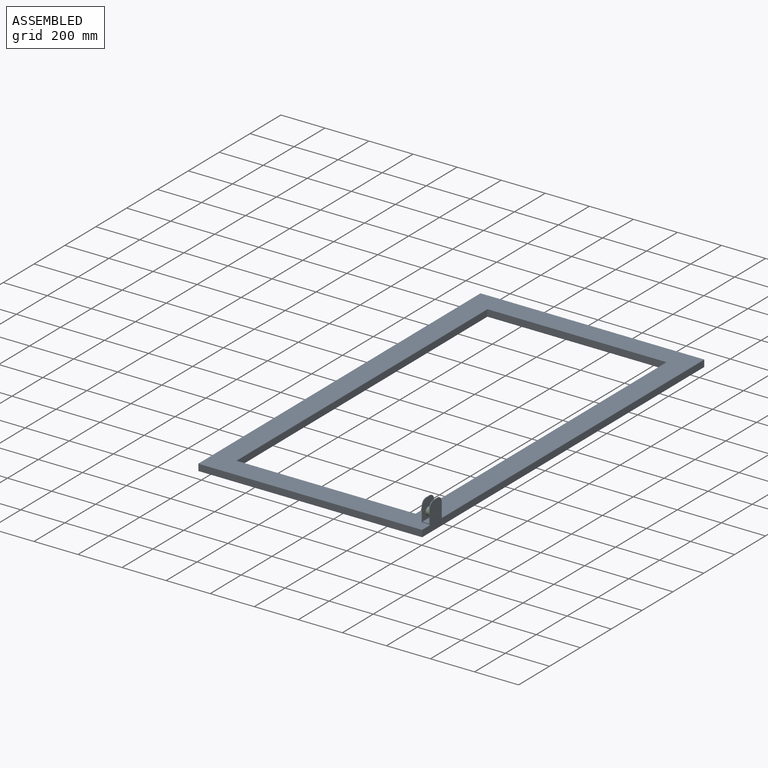
[diagram: assembled view]
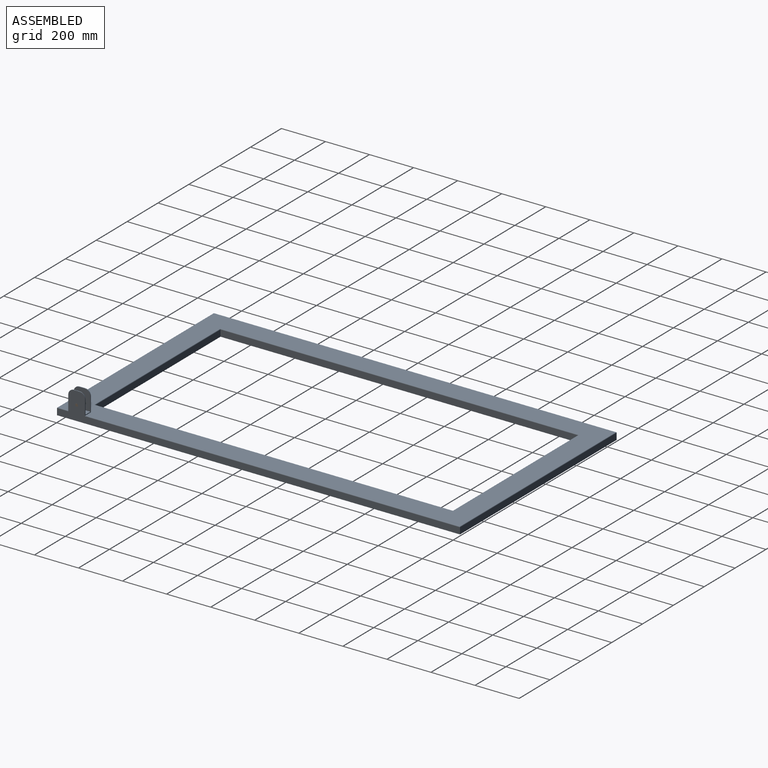
[diagram: assembled view, second angle]
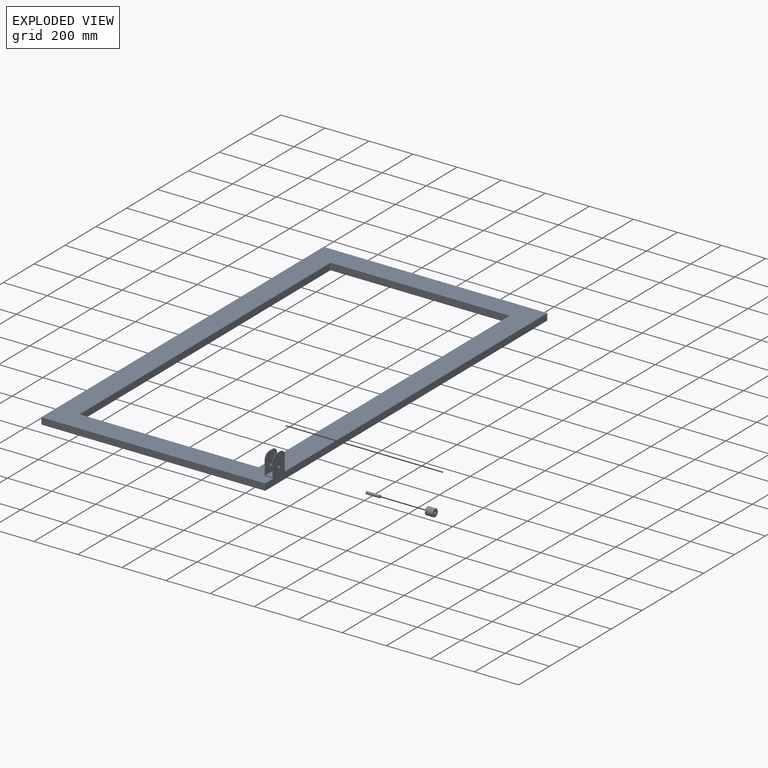
[diagram: exploded view]
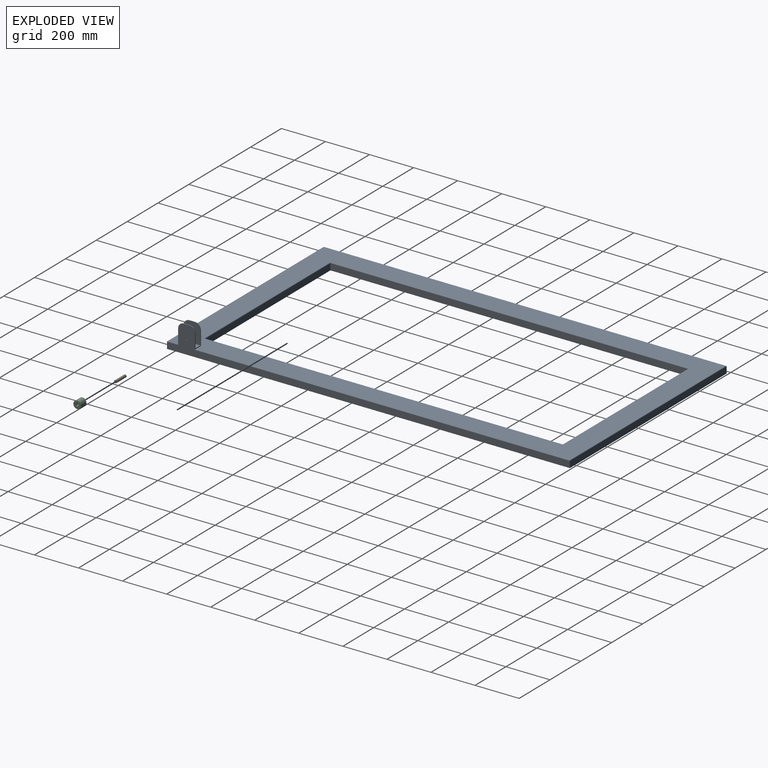
[diagram: exploded view, second angle]
ASSEMBLY  parts=3 mates=2
PART A: 33 faces, bbox 1016x1828.8x123.8 mm
  f0: plane 76.2x31.75mm, normal (0,0,1), area 2419.3mm2, adj f11,f12,f14,f16
  f1: plane 1823.72x1010.92mm, normal (0,0,1), area 509302.2mm2, adj f6,f11,f12,f13,f24,f25,f26,f27
  f2: plane 1016x29.21mm, normal (0,-1,0), area 29677.4mm2, adj f3,f9,f10,f25
  f3: plane 1828.8x123.83mm, normal (1,0,0), area 60225.3mm2, adj f2,f4,f10,f11,f12,f17,f18,f19
  f4: plane 1016x29.21mm, normal (0,1,0), area 29677.4mm2, adj f3,f9,f10,f27
  f5: plane 1628.14x29.21mm, normal (1,0,0), area 47485.2mm2, adj f6,f8,f10,f29,f30
  f6: plane 817.88x29.21mm, normal (0,-1,0), area 23744.7mm2, adj f1,f5,f7,f29,f30,f31
  f7: plane 1628.14x29.21mm, normal (-1,0,0), area 47485.2mm2, adj f6,f8,f10,f29,f31
  f8: plane 812.8x29.21mm, normal (0,1,0), area 23741.9mm2, adj f5,f7,f10,f32
  f9: plane 1828.8x29.21mm, normal (-1,0,0), area 53419.2mm2, adj f2,f4,f10,f26
  f10: plane 1828.8x1016mm, normal (0,0,-1), area 534708.6mm2, adj f2,f3,f4,f5,f7,f8,f9,f29
  f11: plane 69.22x38.1mm, normal (0,-1,0), area 525.6mm2, adj f0,f1,f3,f13,f14,f16,f18,f21
  f12: plane 69.22x38.1mm, normal (0,1,0), area 525.6mm2, adj f0,f1,f3,f13,f14,f16,f19,f20
  f13: plane 92.08x76.2mm, normal (-1,0,0), area 6612.5mm2, adj f1,f11,f12,f15,f20,f21,f23
  f14: plane 88.9x76.2mm, normal (1,0,0), area 6370.6mm2, adj f0,f11,f12,f15,f20,f21,f23
  f15: plane 25.4x3.18mm, normal (0,0,1), area 80.6mm2, adj f13,f14,f20,f21
  f16: plane 88.9x76.2mm, normal (-1,0,0), area 6370.6mm2, adj f0,f11,f12,f17,f18,f19,f22
  f17: plane 25.4x3.18mm, normal (0,0,1), area 80.6mm2, adj f3,f16,f18,f19
  f18: cylinder r=25.4mm len=25.4mm, axis (-1,0,0), area 126.7mm2, adj f3,f11,f16,f17
  f19: cylinder r=25.4mm len=25.4mm, axis (1,0,0), area 126.7mm2, adj f3,f12,f16,f17
  f20: cylinder r=25.4mm len=25.4mm, axis (1,0,0), area 126.7mm2, adj f12,f13,f14,f15
  f21: cylinder r=25.4mm len=25.4mm, axis (-1,0,0), area 126.7mm2, adj f11,f13,f14,f15
  f22: cylinder r=6.35mm len=12.7mm, axis (1,0,0), area 126.7mm2, adj f3,f16
  f23: cylinder r=6.35mm len=12.7mm, axis (1,0,0), area 126.7mm2, adj f13,f14
  f24: cylinder r=2.54mm len=50.8mm, axis (0,-1,0), area 199mm2, adj f1,f3,f11,f25
  f25: cylinder r=2.54mm len=1016mm, axis (-1,0,0), area 4046.3mm2, adj f1,f2,f24,f26
  f26: cylinder r=2.54mm len=1828.8mm, axis (0,1,0), area 7289.2mm2, adj f1,f9,f25,f27
  f27: cylinder r=2.54mm len=1016mm, axis (1,0,0), area 4046.3mm2, adj f1,f4,f26,f28
  f28: cylinder r=2.54mm len=1701.8mm, axis (0,-1,0), area 6786.2mm2, adj f1,f3,f12,f27
  f29: cylinder r=2.54mm len=812.8mm, axis (1,0,0), area 3242.9mm2, adj f5,f6,f7,f10
  f30: cylinder r=2.54mm len=1628.14mm, axis (0,-1,0), area 6489.5mm2, adj f1,f5,f6,f32
  f31: cylinder r=2.54mm len=1628.14mm, axis (0,1,0), area 6489.5mm2, adj f1,f6,f7,f32
  f32: cylinder r=2.54mm len=817.88mm, axis (1,0,0), area 3250.3mm2, adj f1,f8,f30,f31
PART B: 3 faces, bbox 12.4x12.4x63.5 mm
  f0: cylinder r=6.22mm len=63.5mm, axis (0,0,1), area 2482.9mm2, adj f1,f2
  f1: plane 12.45x12.45mm, normal (0,0,-1), area 121.7mm2, adj f0
  f2: plane 12.45x12.45mm, normal (0,0,1), area 121.7mm2, adj f0
PART C: 4 faces, bbox 34.8x34.8x34.8 mm
  f0: cylinder r=6.35mm len=34.8mm, axis (-1,0,0), area 1388.4mm2, adj f2,f3
  f1: cylinder r=17.4mm len=34.8mm, axis (-1,0,0), area 3804.2mm2, adj f2,f3
  f2: plane 34.8x34.8mm, normal (1,0,0), area 824.4mm2, adj f0,f1
  f3: plane 34.8x34.8mm, normal (-1,0,0), area 824.4mm2, adj f0,f1
PLACE A t=(0.18,2.68,8.29)mm
PLACE B rot(axis=(0,1,0),90deg) t=(0.18,-193.03,191.89)mm
PLACE C t=(-37.92,1487.2,-602.21)mm
MATE revolute B.f0 <-> A.f22  axis (1,0,0) through (0.18,91.58,73.38)mm
MATE revolute C.f0 <-> B.f0  axis (-1,0,0) through (-37.92,91.58,73.38)mm
